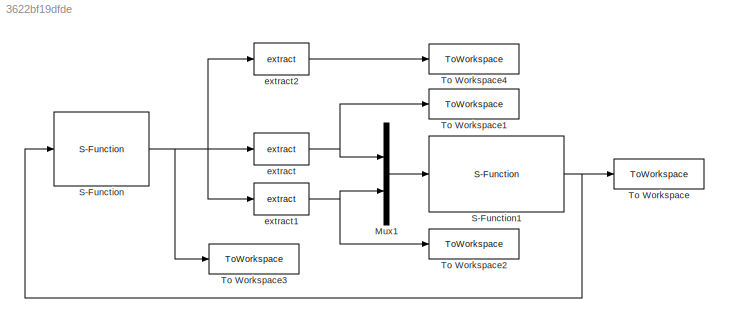
MODEL slx_3622bf19dfde
KIND model
CONFIG AbsTol = auto
CONFIG EnableMultiTasking = off
CONFIG FixedStep = DT
CONFIG MaxStep = auto
CONFIG MinStep = auto
CONFIG RelTol = 1e-3
CONFIG SampleTimeConstraint = Unconstrained
CONFIG SolverName = FixedStepAuto
CONFIG StartTime = 0.0
CONFIG StopTime = TMax
BLOCK [Mux] Mux1
  DisplayOption = bar
  Inputs = 2
BLOCK [S-Function] S-Function
  EnableBusSupport = off
  FunctionName = FAST_SFunc
  Parameters = FAST_InputFileName, TMax, 0
  SFcnIsStateOwnerBlock = off
  SFunctionDeploymentMode = off
BLOCK [S-Function] S-Function1
  EnableBusSupport = off
  FunctionName = MoorDyn_SFunc_3DOF
  Parameters = MD_InputFileName, DT, TMax
  SFcnIsStateOwnerBlock = off
  SFunctionDeploymentMode = off
BLOCK [ToWorkspace] To Workspace
  FixptAsFi = on
  MaxDataPoints = inf
  SampleTime = -1
  SaveFormat = Timeseries
  VariableName = trialForce
BLOCK [ToWorkspace] To Workspace1
  FixptAsFi = on
  MaxDataPoints = inf
  SampleTime = -1
  SaveFormat = Timeseries
  VariableName = daqDisp
BLOCK [ToWorkspace] To Workspace2
  FixptAsFi = on
  MaxDataPoints = inf
  SampleTime = -1
  SaveFormat = Timeseries
  VariableName = daqVel
BLOCK [ToWorkspace] To Workspace3
  FixptAsFi = on
  MaxDataPoints = inf
  SampleTime = -1
  SaveFormat = Timeseries
  VariableName = FAST
BLOCK [ToWorkspace] To Workspace4
  FixptAsFi = on
  MaxDataPoints = inf
  SampleTime = -1
  SaveFormat = Timeseries
  VariableName = daqForce
BLOCK [Reference] extract  REF=HybridSimLib/Signal
Routing/extract
  SourceBlock = HybridSimLib/Signal\nRouting/extract
  SourceProductName = Hybrid Simulation
  SourceType = from Actuators
BLOCK [Reference] extract1  REF=HybridSimLib/Signal
Routing/extract
  SourceBlock = HybridSimLib/Signal\nRouting/extract
  SourceProductName = Hybrid Simulation
  SourceType = from Actuators
BLOCK [Reference] extract2  REF=HybridSimLib/Signal
Routing/extract
  SourceBlock = HybridSimLib/Signal\nRouting/extract
  SourceProductName = Hybrid Simulation
  SourceType = from Actuators
LINE Mux1:1 -> S-Function1:1
NET S-Function1:1 -> S-Function:1, To Workspace:1
NET S-Function:1 -> To Workspace3:1, extract1:1, extract2:1, extract:1
NET extract1:1 -> Mux1:2, To Workspace2:1
LINE extract2:1 -> To Workspace4:1
NET extract:1 -> Mux1:1, To Workspace1:1
note: NET lines group one-source signal fan-out (src -> all destinations, sorted); 1:1 wires keep LINE
